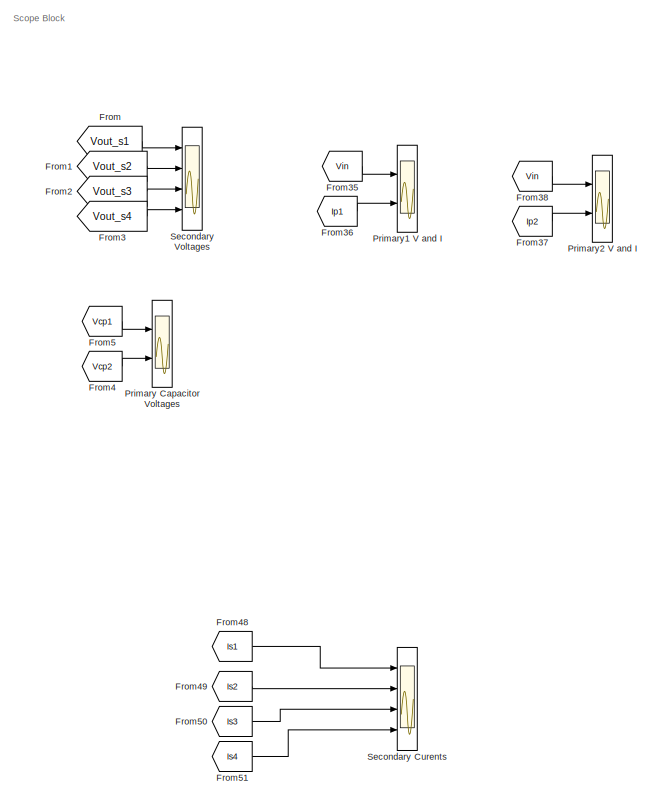
[diagram: root canvas - part 1/7, top right region]
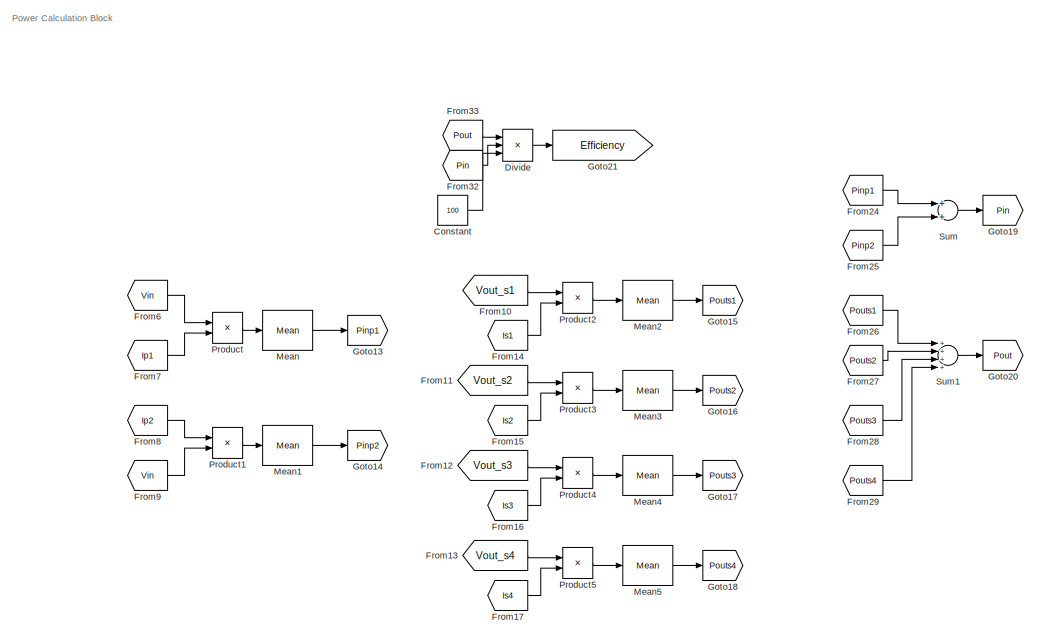
[diagram: root canvas - part 2/7, top left region]
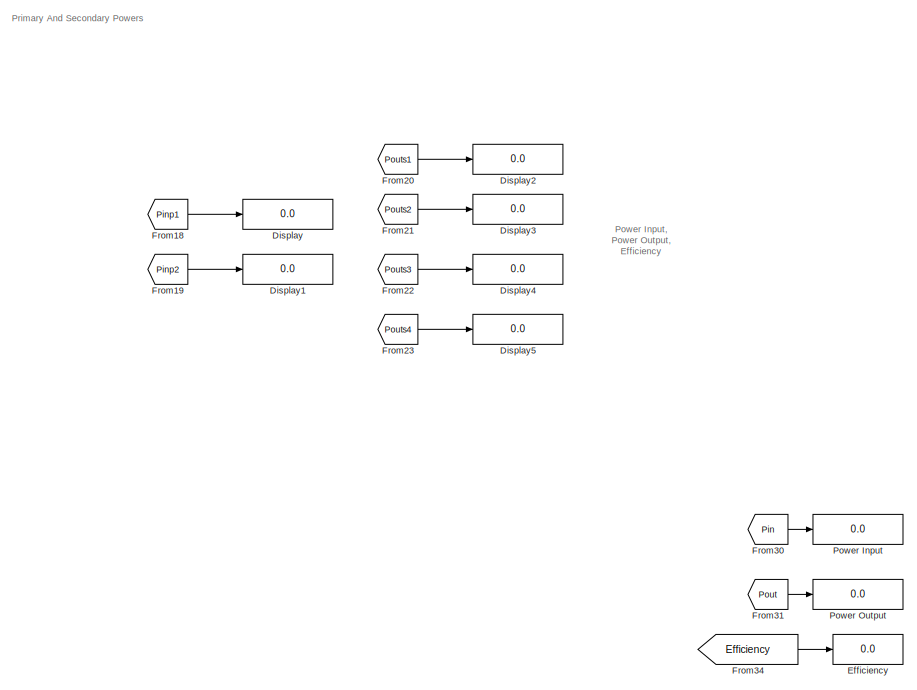
[diagram: root canvas - part 3/7, top center region]
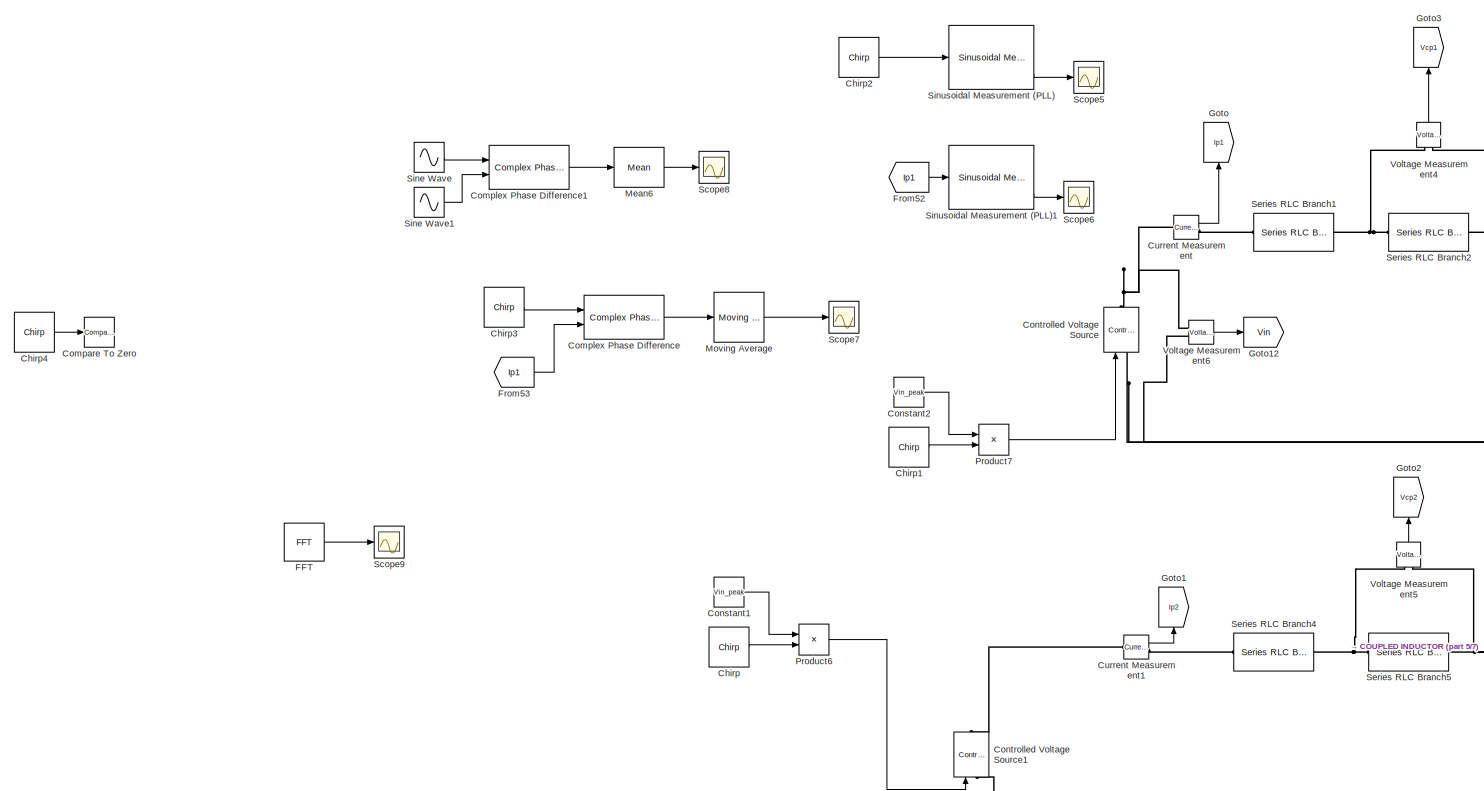
[diagram: root canvas - part 4/7, bottom left region]
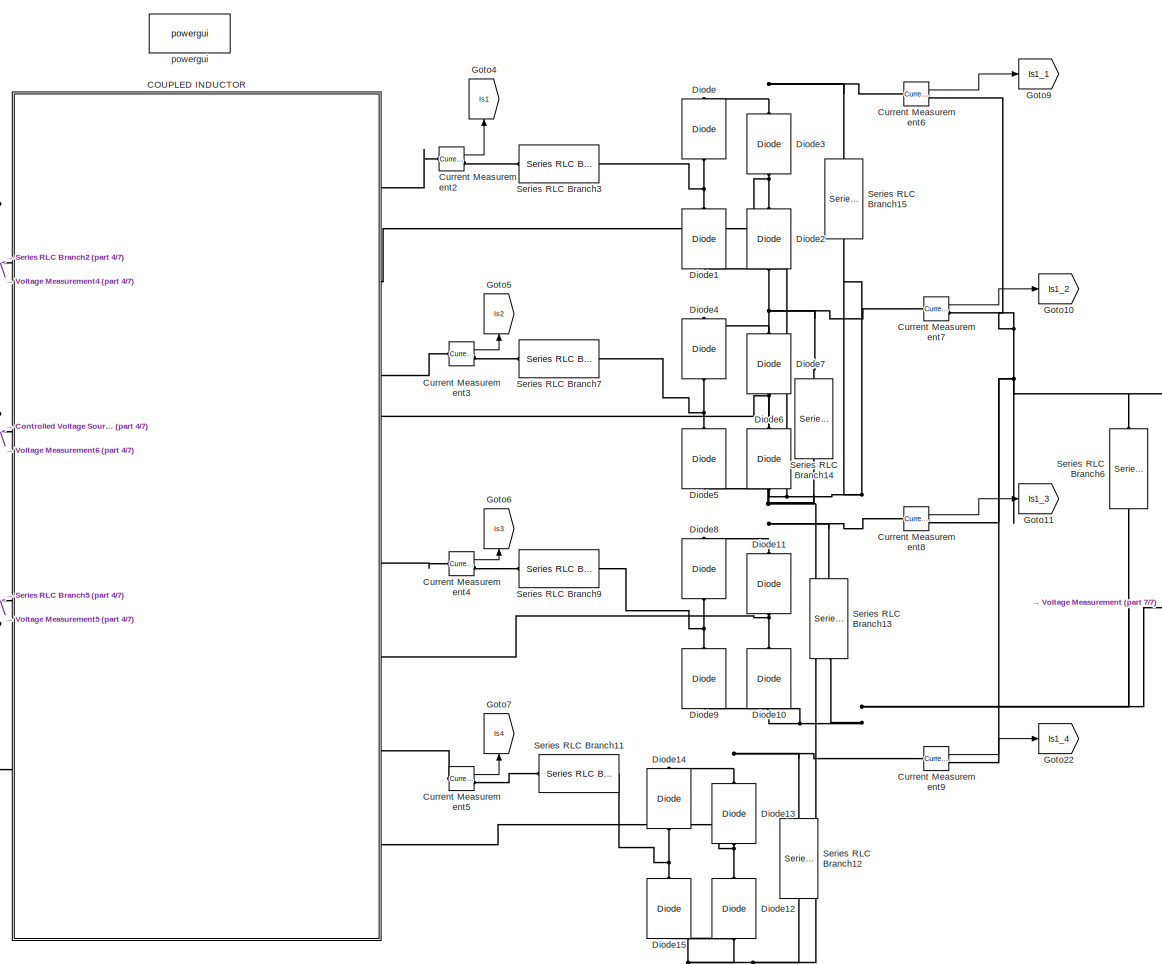
[diagram: root canvas - part 5/7, bottom center region]
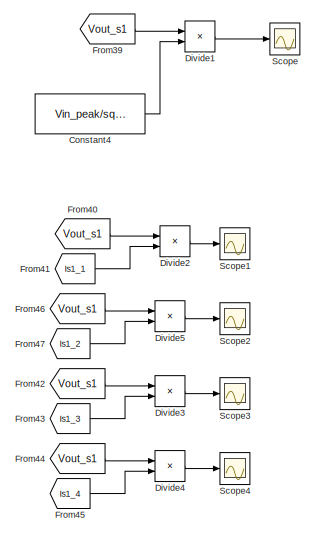
[diagram: root canvas - part 6/7, bottom right region]
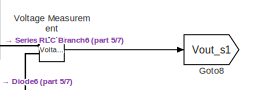
[diagram: root canvas - part 7/7, bottom right region]
MODEL slx_f496c27c3689
KIND model
CONFIG AbsTol = auto
CONFIG EnableMultiTasking = off
CONFIG FixedStep = auto
CONFIG MaxStep = 1e-5
CONFIG MinStep = auto
CONFIG RelTol = 1e-3
CONFIG SampleTimeConstraint = Unconstrained
CONFIG Solver = VariableStepAuto
CONFIG SolverName = VariableStepAuto
CONFIG StartTime = 0.0
CONFIG StopTime = 0.05
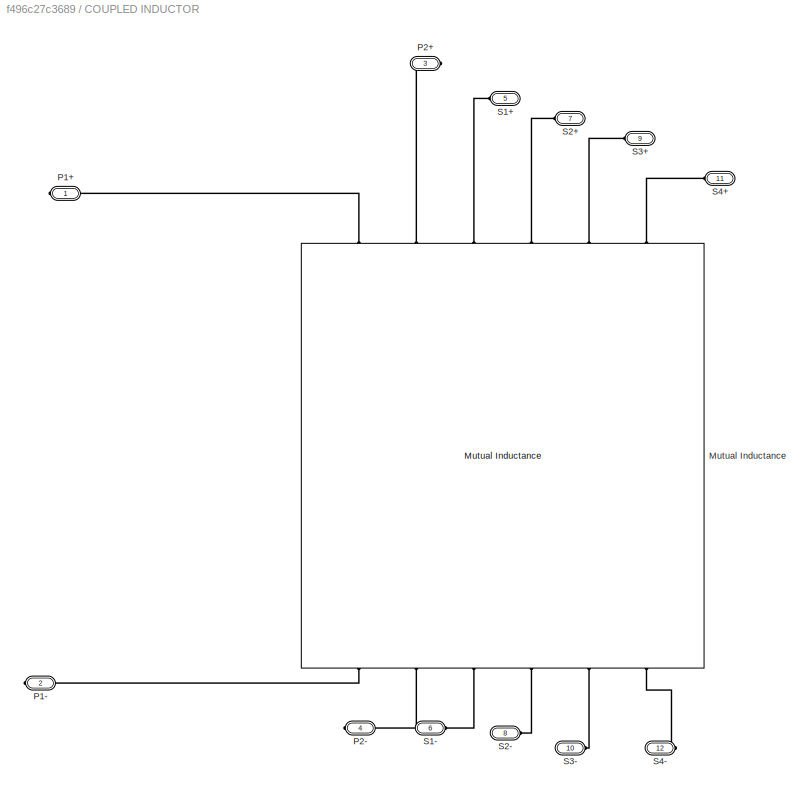
BLOCK [SubSystem] COUPLED INDUCTOR
  Ports = [0, 0, 0, 0, 0, 8, 4]
  RequestExecContextInheritance = off
BLOCK [Reference] COUPLED INDUCTOR/Mutual Inductance  REF=powerlib/Elements/Mutual Inductance
  AttributesFormatString = \n
  Ports = [0, 0, 0, 0, 0, 6, 6]
  SourceBlock = powerlib/Elements/Mutual Inductance
  SourceProductBaseCode = PS
  SourceProductName = Simscape Power Systems
  SourceType = Mutual Inductance
BLOCK [PMIOPort] COUPLED INDUCTOR/P1+
  Side = Right
BLOCK [PMIOPort] COUPLED INDUCTOR/P1-
  Port = 2
  Side = Right
BLOCK [PMIOPort] COUPLED INDUCTOR/P2+
  Port = 3
  Side = Right
BLOCK [PMIOPort] COUPLED INDUCTOR/P2-
  Port = 4
  Side = Right
BLOCK [PMIOPort] COUPLED INDUCTOR/S1+
  Port = 5
  Side = Left
BLOCK [PMIOPort] COUPLED INDUCTOR/S1-
  Port = 6
  Side = Left
BLOCK [PMIOPort] COUPLED INDUCTOR/S2+
  Port = 7
  Side = Left
BLOCK [PMIOPort] COUPLED INDUCTOR/S2-
  Port = 8
  Side = Left
BLOCK [PMIOPort] COUPLED INDUCTOR/S3+
  Port = 9
  Side = Left
BLOCK [PMIOPort] COUPLED INDUCTOR/S3-
  Port = 10
  Side = Left
BLOCK [PMIOPort] COUPLED INDUCTOR/S4+
  Port = 11
  Side = Left
BLOCK [PMIOPort] COUPLED INDUCTOR/S4-
  Port = 12
  Side = Left
BLOCK [Reference] Chirp  REF=dspsrcs4/Chirp
  Ports = [0, 1]
  SourceBlock = dspsrcs4/Chirp
  SourceProductBaseCode = DS
  SourceProductName = DSP System Toolbox
  SourceType = Chirp
BLOCK [Reference] Chirp1  REF=dspsrcs4/Chirp
  Ports = [0, 1]
  SourceBlock = dspsrcs4/Chirp
  SourceProductBaseCode = DS
  SourceProductName = DSP System Toolbox
  SourceType = Chirp
BLOCK [Reference] Chirp2  REF=dspsrcs4/Chirp
  Ports = [0, 1]
  SourceBlock = dspsrcs4/Chirp
  SourceProductBaseCode = DS
  SourceProductName = DSP System Toolbox
  SourceType = Chirp
BLOCK [Reference] Chirp3  REF=dspsrcs4/Chirp
  Ports = [0, 1]
  SourceBlock = dspsrcs4/Chirp
  SourceProductBaseCode = DS
  SourceProductName = DSP System Toolbox
  SourceType = Chirp
BLOCK [Reference] Chirp4  REF=dspsrcs4/Chirp
  Ports = [0, 1]
  SourceBlock = dspsrcs4/Chirp
  SourceProductBaseCode = DS
  SourceProductName = DSP System Toolbox
  SourceType = Chirp
BLOCK [Reference] Compare To Zero  REF=simulink/Logic and Bit
Operations/Compare
To Zero
  Ports = [1, 1]
  SourceBlock = simulink/Logic and Bit\nOperations/Compare\nTo Zero
  SourceProductBaseCode = SL
  SourceProductName = Simulink
  SourceType = Compare To Zero
BLOCK [Reference] Complex Phase Difference  REF=commutil2/Complex Phase
Difference
  Ports = [2, 1]
  SourceBlock = commutil2/Complex Phase\nDifference
  SourceProductBaseCode = CM
  SourceProductName = Communications System Toolbox
  SourceType = Complex Phase Difference
BLOCK [Reference] Complex Phase Difference1  REF=commutil2/Complex Phase
Difference
  Ports = [2, 1]
  SourceBlock = commutil2/Complex Phase\nDifference
  SourceProductBaseCode = CM
  SourceProductName = Communications System Toolbox
  SourceType = Complex Phase Difference
BLOCK [Constant] Constant
  Value = 100
BLOCK [Constant] Constant1
  Value = Vin_peak
BLOCK [Constant] Constant2
  Value = Vin_peak
BLOCK [Constant] Constant4
  Value = Vin_peak/sqrt(2)
BLOCK [Reference] Controlled Voltage Source  REF=powerlib/Electrical
Sources/Controlled Voltage Source
  Ports = [1, 0, 0, 0, 0, 1, 1]
  SourceBlock = powerlib/Electrical\nSources/Controlled Voltage Source
  SourceProductBaseCode = PS
  SourceProductName = Simscape Power Systems
  SourceType = Controlled Voltage Source
BLOCK [Reference] Controlled Voltage Source1  REF=powerlib/Electrical
Sources/Controlled Voltage Source
  Ports = [1, 0, 0, 0, 0, 1, 1]
  SourceBlock = powerlib/Electrical\nSources/Controlled Voltage Source
  SourceProductBaseCode = PS
  SourceProductName = Simscape Power Systems
  SourceType = Controlled Voltage Source
BLOCK [Reference] Current Measurement  REF=powerlib/Measurements/Current Measurement
  Ports = [0, 1, 0, 0, 0, 1, 1]
  SourceBlock = powerlib/Measurements/Current Measurement
  SourceProductBaseCode = PS
  SourceProductName = Simscape Power Systems
  SourceType = Current Measurement
  UserDataPersistent = on
BLOCK [Reference] Current Measurement1  REF=powerlib/Measurements/Current Measurement
  Ports = [0, 1, 0, 0, 0, 1, 1]
  SourceBlock = powerlib/Measurements/Current Measurement
  SourceProductBaseCode = PS
  SourceProductName = Simscape Power Systems
  SourceType = Current Measurement
  UserDataPersistent = on
BLOCK [Reference] Current Measurement2  REF=powerlib/Measurements/Current Measurement
  Ports = [0, 1, 0, 0, 0, 1, 1]
  SourceBlock = powerlib/Measurements/Current Measurement
  SourceProductBaseCode = PS
  SourceProductName = Simscape Power Systems
  SourceType = Current Measurement
  UserDataPersistent = on
BLOCK [Reference] Current Measurement3  REF=powerlib/Measurements/Current Measurement
  Ports = [0, 1, 0, 0, 0, 1, 1]
  SourceBlock = powerlib/Measurements/Current Measurement
  SourceProductBaseCode = PS
  SourceProductName = Simscape Power Systems
  SourceType = Current Measurement
  UserDataPersistent = on
BLOCK [Reference] Current Measurement4  REF=powerlib/Measurements/Current Measurement
  Ports = [0, 1, 0, 0, 0, 1, 1]
  SourceBlock = powerlib/Measurements/Current Measurement
  SourceProductBaseCode = PS
  SourceProductName = Simscape Power Systems
  SourceType = Current Measurement
  UserDataPersistent = on
BLOCK [Reference] Current Measurement5  REF=powerlib/Measurements/Current Measurement
  Ports = [0, 1, 0, 0, 0, 1, 1]
  SourceBlock = powerlib/Measurements/Current Measurement
  SourceProductBaseCode = PS
  SourceProductName = Simscape Power Systems
  SourceType = Current Measurement
  UserDataPersistent = on
BLOCK [Reference] Current Measurement6  REF=powerlib/Measurements/Current Measurement
  Ports = [0, 1, 0, 0, 0, 1, 1]
  SourceBlock = powerlib/Measurements/Current Measurement
  SourceProductBaseCode = PS
  SourceProductName = Simscape Power Systems
  SourceType = Current Measurement
  UserDataPersistent = on
BLOCK [Reference] Current Measurement7  REF=powerlib/Measurements/Current Measurement
  Ports = [0, 1, 0, 0, 0, 1, 1]
  SourceBlock = powerlib/Measurements/Current Measurement
  SourceProductBaseCode = PS
  SourceProductName = Simscape Power Systems
  SourceType = Current Measurement
  UserDataPersistent = on
BLOCK [Reference] Current Measurement8  REF=powerlib/Measurements/Current Measurement
  Ports = [0, 1, 0, 0, 0, 1, 1]
  SourceBlock = powerlib/Measurements/Current Measurement
  SourceProductBaseCode = PS
  SourceProductName = Simscape Power Systems
  SourceType = Current Measurement
  UserDataPersistent = on
BLOCK [Reference] Current Measurement9  REF=powerlib/Measurements/Current Measurement
  Ports = [0, 1, 0, 0, 0, 1, 1]
  SourceBlock = powerlib/Measurements/Current Measurement
  SourceProductBaseCode = PS
  SourceProductName = Simscape Power Systems
  SourceType = Current Measurement
  UserDataPersistent = on
BLOCK [Reference] Diode  REF=powerlib/Power
Electronics/Diode
  Ports = [0, 0, 0, 0, 0, 1, 1]
  SourceBlock = powerlib/Power\nElectronics/Diode
  SourceProductBaseCode = PS
  SourceProductName = Simscape Power Systems
  SourceType = Diode
BLOCK [Reference] Diode1  REF=powerlib/Power
Electronics/Diode
  Ports = [0, 0, 0, 0, 0, 1, 1]
  SourceBlock = powerlib/Power\nElectronics/Diode
  SourceProductBaseCode = PS
  SourceProductName = Simscape Power Systems
  SourceType = Diode
BLOCK [Reference] Diode10  REF=powerlib/Power
Electronics/Diode
  Ports = [0, 0, 0, 0, 0, 1, 1]
  SourceBlock = powerlib/Power\nElectronics/Diode
  SourceProductBaseCode = PS
  SourceProductName = Simscape Power Systems
  SourceType = Diode
BLOCK [Reference] Diode11  REF=powerlib/Power
Electronics/Diode
  Ports = [0, 0, 0, 0, 0, 1, 1]
  SourceBlock = powerlib/Power\nElectronics/Diode
  SourceProductBaseCode = PS
  SourceProductName = Simscape Power Systems
  SourceType = Diode
BLOCK [Reference] Diode12  REF=powerlib/Power
Electronics/Diode
  Ports = [0, 0, 0, 0, 0, 1, 1]
  SourceBlock = powerlib/Power\nElectronics/Diode
  SourceProductBaseCode = PS
  SourceProductName = Simscape Power Systems
  SourceType = Diode
BLOCK [Reference] Diode13  REF=powerlib/Power
Electronics/Diode
  Ports = [0, 0, 0, 0, 0, 1, 1]
  SourceBlock = powerlib/Power\nElectronics/Diode
  SourceProductBaseCode = PS
  SourceProductName = Simscape Power Systems
  SourceType = Diode
BLOCK [Reference] Diode14  REF=powerlib/Power
Electronics/Diode
  Ports = [0, 0, 0, 0, 0, 1, 1]
  SourceBlock = powerlib/Power\nElectronics/Diode
  SourceProductBaseCode = PS
  SourceProductName = Simscape Power Systems
  SourceType = Diode
BLOCK [Reference] Diode15  REF=powerlib/Power
Electronics/Diode
  Ports = [0, 0, 0, 0, 0, 1, 1]
  SourceBlock = powerlib/Power\nElectronics/Diode
  SourceProductBaseCode = PS
  SourceProductName = Simscape Power Systems
  SourceType = Diode
BLOCK [Reference] Diode2  REF=powerlib/Power
Electronics/Diode
  Ports = [0, 0, 0, 0, 0, 1, 1]
  SourceBlock = powerlib/Power\nElectronics/Diode
  SourceProductBaseCode = PS
  SourceProductName = Simscape Power Systems
  SourceType = Diode
BLOCK [Reference] Diode3  REF=powerlib/Power
Electronics/Diode
  Ports = [0, 0, 0, 0, 0, 1, 1]
  SourceBlock = powerlib/Power\nElectronics/Diode
  SourceProductBaseCode = PS
  SourceProductName = Simscape Power Systems
  SourceType = Diode
BLOCK [Reference] Diode4  REF=powerlib/Power
Electronics/Diode
  Ports = [0, 0, 0, 0, 0, 1, 1]
  SourceBlock = powerlib/Power\nElectronics/Diode
  SourceProductBaseCode = PS
  SourceProductName = Simscape Power Systems
  SourceType = Diode
BLOCK [Reference] Diode5  REF=powerlib/Power
Electronics/Diode
  Ports = [0, 0, 0, 0, 0, 1, 1]
  SourceBlock = powerlib/Power\nElectronics/Diode
  SourceProductBaseCode = PS
  SourceProductName = Simscape Power Systems
  SourceType = Diode
BLOCK [Reference] Diode6  REF=powerlib/Power
Electronics/Diode
  Ports = [0, 0, 0, 0, 0, 1, 1]
  SourceBlock = powerlib/Power\nElectronics/Diode
  SourceProductBaseCode = PS
  SourceProductName = Simscape Power Systems
  SourceType = Diode
BLOCK [Reference] Diode7  REF=powerlib/Power
Electronics/Diode
  Ports = [0, 0, 0, 0, 0, 1, 1]
  SourceBlock = powerlib/Power\nElectronics/Diode
  SourceProductBaseCode = PS
  SourceProductName = Simscape Power Systems
  SourceType = Diode
BLOCK [Reference] Diode8  REF=powerlib/Power
Electronics/Diode
  Ports = [0, 0, 0, 0, 0, 1, 1]
  SourceBlock = powerlib/Power\nElectronics/Diode
  SourceProductBaseCode = PS
  SourceProductName = Simscape Power Systems
  SourceType = Diode
BLOCK [Reference] Diode9  REF=powerlib/Power
Electronics/Diode
  Ports = [0, 0, 0, 0, 0, 1, 1]
  SourceBlock = powerlib/Power\nElectronics/Diode
  SourceProductBaseCode = PS
  SourceProductName = Simscape Power Systems
  SourceType = Diode
BLOCK [Display] Display
  Decimation = 1
  Ports = [1]
BLOCK [Display] Display1
  Decimation = 1
  Ports = [1]
BLOCK [Display] Display2
  Decimation = 1
  Ports = [1]
BLOCK [Display] Display3
  Decimation = 1
  Ports = [1]
BLOCK [Display] Display4
  Decimation = 1
  Ports = [1]
BLOCK [Display] Display5
  Decimation = 1
  Ports = [1]
BLOCK [Product] Divide
  InputSameDT = off
  Inputs = */*
  OutDataTypeStr = Inherit: Inherit via internal rule
  Ports = [3, 1]
  RndMeth = Floor
  SaturateOnIntegerOverflow = off
BLOCK [Product] Divide1
  InputSameDT = off
  Inputs = */
  OutDataTypeStr = Inherit: Inherit via internal rule
  Ports = [2, 1]
  RndMeth = Floor
  SaturateOnIntegerOverflow = off
BLOCK [Product] Divide2
  InputSameDT = off
  Inputs = */
  OutDataTypeStr = Inherit: Inherit via internal rule
  Ports = [2, 1]
  RndMeth = Floor
  SaturateOnIntegerOverflow = off
BLOCK [Product] Divide3
  InputSameDT = off
  Inputs = */
  OutDataTypeStr = Inherit: Inherit via internal rule
  Ports = [2, 1]
  RndMeth = Floor
  SaturateOnIntegerOverflow = off
BLOCK [Product] Divide4
  InputSameDT = off
  Inputs = */
  OutDataTypeStr = Inherit: Inherit via internal rule
  Ports = [2, 1]
  RndMeth = Floor
  SaturateOnIntegerOverflow = off
BLOCK [Product] Divide5
  InputSameDT = off
  Inputs = */
  OutDataTypeStr = Inherit: Inherit via internal rule
  Ports = [2, 1]
  RndMeth = Floor
  SaturateOnIntegerOverflow = off
BLOCK [Display] Efficiency
  Decimation = 1
  Ports = [1]
BLOCK [Reference] FFT  REF=dspxfrm3/FFT
  Ports = [1, 1]
  SourceBlock = dspxfrm3/FFT
  SourceProductBaseCode = DS
  SourceProductName = DSP System Toolbox
  SourceType = FFT
BLOCK [From] From
  GotoTag = Vout_s1
BLOCK [From] From1
  GotoTag = Vout_s2
BLOCK [From] From10
  GotoTag = Vout_s1
BLOCK [From] From11
  GotoTag = Vout_s2
BLOCK [From] From12
  GotoTag = Vout_s3
BLOCK [From] From13
  GotoTag = Vout_s4
BLOCK [From] From14
  GotoTag = Is1
BLOCK [From] From15
  GotoTag = Is2
BLOCK [From] From16
  GotoTag = Is3
BLOCK [From] From17
  GotoTag = Is4
BLOCK [From] From18
  GotoTag = Pinp1
BLOCK [From] From19
  GotoTag = Pinp2
BLOCK [From] From2
  GotoTag = Vout_s3
BLOCK [From] From20
  GotoTag = Pouts1
BLOCK [From] From21
  GotoTag = Pouts2
BLOCK [From] From22
  GotoTag = Pouts3
BLOCK [From] From23
  GotoTag = Pouts4
BLOCK [From] From24
  GotoTag = Pinp1
BLOCK [From] From25
  GotoTag = Pinp2
BLOCK [From] From26
  GotoTag = Pouts1
BLOCK [From] From27
  GotoTag = Pouts2
BLOCK [From] From28
  GotoTag = Pouts3
BLOCK [From] From29
  GotoTag = Pouts4
BLOCK [From] From3
  GotoTag = Vout_s4
BLOCK [From] From30
  GotoTag = Pin
BLOCK [From] From31
  GotoTag = Pout
BLOCK [From] From32
  GotoTag = Pin
BLOCK [From] From33
  GotoTag = Pout
BLOCK [From] From34
  GotoTag = Efficiency
BLOCK [From] From35
  GotoTag = Vin
BLOCK [From] From36
  GotoTag = Ip1
BLOCK [From] From37
  GotoTag = Ip2
BLOCK [From] From38
  GotoTag = Vin
BLOCK [From] From39
  GotoTag = Vout_s1
BLOCK [From] From4
  GotoTag = Vcp2
BLOCK [From] From40
  GotoTag = Vout_s1
BLOCK [From] From41
  GotoTag = Is1_1
BLOCK [From] From42
  GotoTag = Vout_s1
BLOCK [From] From43
  GotoTag = Is1_3
BLOCK [From] From44
  GotoTag = Vout_s1
BLOCK [From] From45
  GotoTag = Is1_4
BLOCK [From] From46
  GotoTag = Vout_s1
BLOCK [From] From47
  GotoTag = Is1_2
BLOCK [From] From48
  GotoTag = Is1
BLOCK [From] From49
  GotoTag = Is2
BLOCK [From] From5
  GotoTag = Vcp1
BLOCK [From] From50
  GotoTag = Is3
BLOCK [From] From51
  GotoTag = Is4
BLOCK [From] From52
  GotoTag = Ip1
BLOCK [From] From53
  GotoTag = Ip1
BLOCK [From] From6
  GotoTag = Vin
BLOCK [From] From7
  GotoTag = Ip1
BLOCK [From] From8
  GotoTag = Ip2
BLOCK [From] From9
  GotoTag = Vin
BLOCK [Goto] Goto
  GotoTag = Ip1
BLOCK [Goto] Goto1
  GotoTag = Ip2
BLOCK [Goto] Goto10
  GotoTag = Is1_2
BLOCK [Goto] Goto11
  GotoTag = Is1_3
BLOCK [Goto] Goto12
  GotoTag = Vin
BLOCK [Goto] Goto13
  GotoTag = Pinp1
BLOCK [Goto] Goto14
  GotoTag = Pinp2
BLOCK [Goto] Goto15
  GotoTag = Pouts1
BLOCK [Goto] Goto16
  GotoTag = Pouts2
BLOCK [Goto] Goto17
  GotoTag = Pouts3
BLOCK [Goto] Goto18
  GotoTag = Pouts4
BLOCK [Goto] Goto19
  GotoTag = Pin
BLOCK [Goto] Goto2
  GotoTag = Vcp2
BLOCK [Goto] Goto20
  GotoTag = Pout
BLOCK [Goto] Goto21
  GotoTag = Efficiency
BLOCK [Goto] Goto22
  GotoTag = Is1_4
BLOCK [Goto] Goto3
  GotoTag = Vcp1
BLOCK [Goto] Goto4
  GotoTag = Is1
BLOCK [Goto] Goto5
  GotoTag = Is2
BLOCK [Goto] Goto6
  GotoTag = Is3
BLOCK [Goto] Goto7
  GotoTag = Is4
BLOCK [Goto] Goto8
  GotoTag = Vout_s1
BLOCK [Goto] Goto9
  GotoTag = Is1_1
BLOCK [Reference] Mean  REF=powerlib_meascontrol/Measurements/Mean
  Ports = [1, 1]
  SourceBlock = powerlib_meascontrol/Measurements/Mean
  SourceProductBaseCode = PS
  SourceProductName = Simscape Power Systems
  SourceType = Mean
BLOCK [Reference] Mean1  REF=powerlib_meascontrol/Measurements/Mean
  Ports = [1, 1]
  SourceBlock = powerlib_meascontrol/Measurements/Mean
  SourceProductBaseCode = PS
  SourceProductName = Simscape Power Systems
  SourceType = Mean
BLOCK [Reference] Mean2  REF=powerlib_meascontrol/Measurements/Mean
  Ports = [1, 1]
  SourceBlock = powerlib_meascontrol/Measurements/Mean
  SourceProductBaseCode = PS
  SourceProductName = Simscape Power Systems
  SourceType = Mean
BLOCK [Reference] Mean3  REF=powerlib_meascontrol/Measurements/Mean
  Ports = [1, 1]
  SourceBlock = powerlib_meascontrol/Measurements/Mean
  SourceProductBaseCode = PS
  SourceProductName = Simscape Power Systems
  SourceType = Mean
BLOCK [Reference] Mean4  REF=powerlib_meascontrol/Measurements/Mean
  Ports = [1, 1]
  SourceBlock = powerlib_meascontrol/Measurements/Mean
  SourceProductBaseCode = PS
  SourceProductName = Simscape Power Systems
  SourceType = Mean
BLOCK [Reference] Mean5  REF=powerlib_meascontrol/Measurements/Mean
  Ports = [1, 1]
  SourceBlock = powerlib_meascontrol/Measurements/Mean
  SourceProductBaseCode = PS
  SourceProductName = Simscape Power Systems
  SourceType = Mean
BLOCK [Reference] Mean6  REF=powerlib_meascontrol/Measurements/Mean
  Ports = [1, 1]
  SourceBlock = powerlib_meascontrol/Measurements/Mean
  SourceProductBaseCode = PS
  SourceProductName = Simscape Power Systems
  SourceType = Mean
BLOCK [Reference] Moving Average  REF=dspstat3/Moving
Average
  Ports = [1, 1]
  SourceBlock = dspstat3/Moving\nAverage
  SourceProductBaseCode = DS
  SourceProductName = DSP System Toolbox
  SourceType = dsp.simulink.MovingAverage
BLOCK [Display] Power Input
  Decimation = 1
  Ports = [1]
BLOCK [Display] Power Output
  Decimation = 1
  Ports = [1]
BLOCK [Scope] Primary Capacitor Voltages
  Floating = off
  NumInputPorts = 2
  Ports = [2]
  ScopeSpecificationString = Simulink.scopes.TimeScopeBlockCfg('CurrentConfiguration', extmgr.ConfigurationSet(extmgr.Configuration('Core','General UI',true,'FigureColor',[1 1 1]),extmgr.Configuration('Core','Source UI',true),extmgr.Configuration('Sources','WiredSimulink',true,'DataLoggingVariableName','ScopeData1'),extmgr.Configuration('Visuals','Time Domain',true,'SerializedDisplays',{struct('MinYLimReal','-851.30975','MaxY...<+1909ch>
BLOCK [Scope] Primary1 V and I
  Floating = off
  NumInputPorts = 2
  Ports = [2]
  ScopeSpecificationString = Simulink.scopes.TimeScopeBlockCfg('CurrentConfiguration', extmgr.ConfigurationSet(extmgr.Configuration('Core','General UI',true,'FigureColor',[1 1 1]),extmgr.Configuration('Core','Source UI',true),extmgr.Configuration('Sources','WiredSimulink',true,'DataLoggingVariableName','ScopeData2'),extmgr.Configuration('Visuals','Time Domain',true,'SerializedDisplays',{struct('MinYLimReal','-158.74999','MaxY...<+2194ch>
BLOCK [Scope] Primary2 V and I
  Floating = off
  NumInputPorts = 2
  Ports = [2]
  ScopeSpecificationString = Simulink.scopes.TimeScopeBlockCfg('CurrentConfiguration', extmgr.ConfigurationSet(extmgr.Configuration('Core','General UI',true,'FigureColor',[1 1 1]),extmgr.Configuration('Core','Source UI',true),extmgr.Configuration('Sources','WiredSimulink',true,'DataLoggingVariableName','ScopeData3'),extmgr.Configuration('Visuals','Time Domain',true,'SerializedDisplays',{struct('MinYLimReal','-514.25571','MaxY...<+1938ch>
BLOCK [Product] Product
  InputSameDT = off
  OutDataTypeStr = Inherit: Inherit via internal rule
  Ports = [2, 1]
  RndMeth = Floor
  SaturateOnIntegerOverflow = off
BLOCK [Product] Product1
  InputSameDT = off
  OutDataTypeStr = Inherit: Inherit via internal rule
  Ports = [2, 1]
  RndMeth = Floor
  SaturateOnIntegerOverflow = off
BLOCK [Product] Product2
  InputSameDT = off
  OutDataTypeStr = Inherit: Inherit via internal rule
  Ports = [2, 1]
  RndMeth = Floor
  SaturateOnIntegerOverflow = off
BLOCK [Product] Product3
  InputSameDT = off
  OutDataTypeStr = Inherit: Inherit via internal rule
  Ports = [2, 1]
  RndMeth = Floor
  SaturateOnIntegerOverflow = off
BLOCK [Product] Product4
  InputSameDT = off
  OutDataTypeStr = Inherit: Inherit via internal rule
  Ports = [2, 1]
  RndMeth = Floor
  SaturateOnIntegerOverflow = off
BLOCK [Product] Product5
  InputSameDT = off
  OutDataTypeStr = Inherit: Inherit via internal rule
  Ports = [2, 1]
  RndMeth = Floor
  SaturateOnIntegerOverflow = off
BLOCK [Product] Product6
  InputSameDT = off
  OutDataTypeStr = Inherit: Inherit via internal rule
  Ports = [2, 1]
  RndMeth = Floor
  SaturateOnIntegerOverflow = off
BLOCK [Product] Product7
  InputSameDT = off
  OutDataTypeStr = Inherit: Inherit via internal rule
  Ports = [2, 1]
  RndMeth = Floor
  SaturateOnIntegerOverflow = off
BLOCK [Scope] Scope
  Floating = off
  NumInputPorts = 1
  Ports = [1]
  ScopeSpecificationString = Simulink.scopes.TimeScopeBlockCfg('CurrentConfiguration', extmgr.ConfigurationSet(extmgr.Configuration('Core','General UI',true,'FigureColor',[0.972549019607843 0.972549019607843 0.972549019607843]),extmgr.Configuration('Core','Source UI',true),extmgr.Configuration('Sources','WiredSimulink',true,'DataLoggingVariableName','ScopeData1'),extmgr.Configuration('Visuals','Time Domain',true,'SerializedDi...<+1633ch>
BLOCK [Scope] Scope1
  Floating = off
  NumInputPorts = 1
  Ports = [1]
  ScopeSpecificationString = Simulink.scopes.TimeScopeBlockCfg('CurrentConfiguration', extmgr.ConfigurationSet(extmgr.Configuration('Core','General UI',true),extmgr.Configuration('Core','Source UI',true),extmgr.Configuration('Sources','WiredSimulink',true,'DataLoggingVariableName','ScopeData2'),extmgr.Configuration('Visuals','Time Domain',true,'SerializedDisplays',{struct('MinYLimReal','-6.57412','MaxYLimReal','59.1671','YLab...<+1716ch>
BLOCK [Scope] Scope2
  Floating = off
  NumInputPorts = 1
  Ports = [1]
  ScopeSpecificationString = Simulink.scopes.TimeScopeBlockCfg('CurrentConfiguration', extmgr.ConfigurationSet(extmgr.Configuration('Core','General UI',true),extmgr.Configuration('Core','Source UI',true),extmgr.Configuration('Sources','WiredSimulink',true,'DataLoggingVariableName','ScopeData3'),extmgr.Configuration('Visuals','Time Domain',true,'SerializedDisplays',{struct('MinYLimReal','-19066297.66075','MaxYLimReal','5407067...<+1767ch>
BLOCK [Scope] Scope3
  Floating = off
  NumInputPorts = 1
  Ports = [1]
  ScopeSpecificationString = Simulink.scopes.TimeScopeBlockCfg('CurrentConfiguration', extmgr.ConfigurationSet(extmgr.Configuration('Core','General UI',true),extmgr.Configuration('Core','Source UI',true),extmgr.Configuration('Sources','WiredSimulink',true,'DataLoggingVariableName','ScopeData4'),extmgr.Configuration('Visuals','Time Domain',true,'SerializedDisplays',{struct('MinYLimReal','-642.83591','MaxYLimReal','503.56144','...<+1730ch>
BLOCK [Scope] Scope4
  Floating = off
  NumInputPorts = 1
  Ports = [1]
  ScopeSpecificationString = Simulink.scopes.TimeScopeBlockCfg('CurrentConfiguration', extmgr.ConfigurationSet(extmgr.Configuration('Core','General UI',true),extmgr.Configuration('Core','Source UI',true),extmgr.Configuration('Sources','WiredSimulink',true,'DataLoggingVariableName','ScopeData5'),extmgr.Configuration('Visuals','Time Domain',true,'SerializedDisplays',{struct('MinYLimReal','-6.56283','MaxYLimReal','59.06548','YLa...<+1720ch>
BLOCK [Scope] Scope5
  Floating = off
  NumInputPorts = 1
  Ports = [1]
  ScopeSpecificationString = Simulink.scopes.TimeScopeBlockCfg('CurrentConfiguration', extmgr.ConfigurationSet(extmgr.Configuration('Core','General UI',true),extmgr.Configuration('Core','Source UI',true),extmgr.Configuration('Sources','WiredSimulink',true,'DataLoggingVariableName','ScopeData7'),extmgr.Configuration('Visuals','Time Domain',true,'SerializedDisplays',{struct('MinYLimReal','-0.12622','MaxYLimReal','1.12516','YLab...<+1389ch>
BLOCK [Scope] Scope6
  Floating = off
  NumInputPorts = 1
  Ports = [1]
  ScopeSpecificationString = Simulink.scopes.TimeScopeBlockCfg('CurrentConfiguration', extmgr.ConfigurationSet(extmgr.Configuration('Core','General UI',true),extmgr.Configuration('Core','Source UI',true),extmgr.Configuration('Sources','WiredSimulink',true,'DataLoggingVariableName','ScopeData8'),extmgr.Configuration('Visuals','Time Domain',true,'SerializedDisplays',{struct('MinYLimReal','-0.13714','MaxYLimReal','1.12642','YLab...<+1390ch>
BLOCK [Scope] Scope7
  Floating = off
  NumInputPorts = 1
  Ports = [1]
  ScopeSpecificationString = Simulink.scopes.TimeScopeBlockCfg('CurrentConfiguration', extmgr.ConfigurationSet(extmgr.Configuration('Core','General UI',true),extmgr.Configuration('Core','Source UI',true),extmgr.Configuration('Sources','WiredSimulink',true,'DataLoggingVariableName','ScopeData9'),extmgr.Configuration('Visuals','Time Domain',true,'SerializedDisplays',{struct('MinYLimReal','-0.3927','MaxYLimReal','3.53429','YLabe...<+1442ch>
BLOCK [Scope] Scope8
  Floating = off
  NumInputPorts = 1
  Ports = [1]
  ScopeSpecificationString = Simulink.scopes.TimeScopeBlockCfg('CurrentConfiguration', extmgr.ConfigurationSet(extmgr.Configuration('Core','General UI',true),extmgr.Configuration('Core','Source UI',true),extmgr.Configuration('Sources','WiredSimulink',true,'DataLoggingVariableName','ScopeData10'),extmgr.Configuration('Visuals','Time Domain',true,'SerializedDisplays',{struct('MinYLimReal','-0.3927','MaxYLimReal','3.53429','YLab...<+1434ch>
BLOCK [Scope] Scope9
  Floating = off
  NumInputPorts = 1
  Ports = [1]
  ScopeSpecificationString = Simulink.scopes.TimeScopeBlockCfg('CurrentConfiguration', extmgr.ConfigurationSet(extmgr.Configuration('Core','General UI',true),extmgr.Configuration('Core','Source UI',true),extmgr.Configuration('Sources','WiredSimulink',true,'DataLoggingVariableName','ScopeData11'),extmgr.Configuration('Visuals','Time Domain',true,'SerializedDisplays',{struct('MinYLimReal','-1.0326','MaxYLimReal','1.04729','YLab...<+1454ch>
BLOCK [Scope] Secondary Curents
  Floating = off
  NumInputPorts = 4
  Ports = [4]
  ScopeSpecificationString = Simulink.scopes.TimeScopeBlockCfg('CurrentConfiguration', extmgr.ConfigurationSet(extmgr.Configuration('Core','General UI',true,'FigureColor',[1 1 1]),extmgr.Configuration('Core','Source UI',true),extmgr.Configuration('Sources','WiredSimulink',true,'DataLoggingVariableName','ScopeData6'),extmgr.Configuration('Visuals','Time Domain',true,'SerializedDisplays',{struct('MinYLimReal','-5.22984','MaxYLi...<+1943ch>
BLOCK [Scope] Secondary Voltages
  Floating = off
  NumInputPorts = 4
  Ports = [4]
  ScopeSpecificationString = Simulink.scopes.TimeScopeBlockCfg('CurrentConfiguration', extmgr.ConfigurationSet(extmgr.Configuration('Core','General UI',true,'FigureColor',[1 1 1]),extmgr.Configuration('Core','Source UI',true),extmgr.Configuration('Sources','WiredSimulink',true),extmgr.Configuration('Visuals','Time Domain',true,'SerializedDisplays',{struct('MinYLimReal','-12.56707','MaxYLimReal','113.10359','YLabelReal','','Mi...<+1879ch>
BLOCK [Reference] Series RLC Branch1  REF=powerlib/Elements/Series RLC Branch
  Ports = [0, 0, 0, 0, 0, 1, 1]
  SourceBlock = powerlib/Elements/Series RLC Branch
  SourceProductBaseCode = PS
  SourceProductName = Simscape Power Systems
  SourceType = Series RLC Branch
BLOCK [Reference] Series RLC Branch11  REF=powerlib/Elements/Series RLC Branch
  Ports = [0, 0, 0, 0, 0, 1, 1]
  SourceBlock = powerlib/Elements/Series RLC Branch
  SourceProductBaseCode = PS
  SourceProductName = Simscape Power Systems
  SourceType = Series RLC Branch
BLOCK [Reference] Series RLC Branch12  REF=powerlib/Elements/Series RLC Branch
  Ports = [0, 0, 0, 0, 0, 1, 1]
  SourceBlock = powerlib/Elements/Series RLC Branch
  SourceProductBaseCode = PS
  SourceProductName = Simscape Power Systems
  SourceType = Series RLC Branch
BLOCK [Reference] Series RLC Branch13  REF=powerlib/Elements/Series RLC Branch
  Ports = [0, 0, 0, 0, 0, 1, 1]
  SourceBlock = powerlib/Elements/Series RLC Branch
  SourceProductBaseCode = PS
  SourceProductName = Simscape Power Systems
  SourceType = Series RLC Branch
BLOCK [Reference] Series RLC Branch14  REF=powerlib/Elements/Series RLC Branch
  Ports = [0, 0, 0, 0, 0, 1, 1]
  SourceBlock = powerlib/Elements/Series RLC Branch
  SourceProductBaseCode = PS
  SourceProductName = Simscape Power Systems
  SourceType = Series RLC Branch
BLOCK [Reference] Series RLC Branch15  REF=powerlib/Elements/Series RLC Branch
  Ports = [0, 0, 0, 0, 0, 1, 1]
  SourceBlock = powerlib/Elements/Series RLC Branch
  SourceProductBaseCode = PS
  SourceProductName = Simscape Power Systems
  SourceType = Series RLC Branch
BLOCK [Reference] Series RLC Branch2  REF=powerlib/Elements/Series RLC Branch
  Ports = [0, 0, 0, 0, 0, 1, 1]
  SourceBlock = powerlib/Elements/Series RLC Branch
  SourceProductBaseCode = PS
  SourceProductName = Simscape Power Systems
  SourceType = Series RLC Branch
BLOCK [Reference] Series RLC Branch3  REF=powerlib/Elements/Series RLC Branch
  Ports = [0, 0, 0, 0, 0, 1, 1]
  SourceBlock = powerlib/Elements/Series RLC Branch
  SourceProductBaseCode = PS
  SourceProductName = Simscape Power Systems
  SourceType = Series RLC Branch
BLOCK [Reference] Series RLC Branch4  REF=powerlib/Elements/Series RLC Branch
  Ports = [0, 0, 0, 0, 0, 1, 1]
  SourceBlock = powerlib/Elements/Series RLC Branch
  SourceProductBaseCode = PS
  SourceProductName = Simscape Power Systems
  SourceType = Series RLC Branch
BLOCK [Reference] Series RLC Branch5  REF=powerlib/Elements/Series RLC Branch
  Ports = [0, 0, 0, 0, 0, 1, 1]
  SourceBlock = powerlib/Elements/Series RLC Branch
  SourceProductBaseCode = PS
  SourceProductName = Simscape Power Systems
  SourceType = Series RLC Branch
BLOCK [Reference] Series RLC Branch6  REF=powerlib/Elements/Series RLC Branch
  Ports = [0, 0, 0, 0, 0, 1, 1]
  SourceBlock = powerlib/Elements/Series RLC Branch
  SourceProductBaseCode = PS
  SourceProductName = Simscape Power Systems
  SourceType = Series RLC Branch
BLOCK [Reference] Series RLC Branch7  REF=powerlib/Elements/Series RLC Branch
  Ports = [0, 0, 0, 0, 0, 1, 1]
  SourceBlock = powerlib/Elements/Series RLC Branch
  SourceProductBaseCode = PS
  SourceProductName = Simscape Power Systems
  SourceType = Series RLC Branch
BLOCK [Reference] Series RLC Branch9  REF=powerlib/Elements/Series RLC Branch
  Ports = [0, 0, 0, 0, 0, 1, 1]
  SourceBlock = powerlib/Elements/Series RLC Branch
  SourceProductBaseCode = PS
  SourceProductName = Simscape Power Systems
  SourceType = Series RLC Branch
BLOCK [Sin] Sine Wave
  Frequency = 2*pi*150000
  Ports = [0, 1]
  SampleTime = 0
BLOCK [Sin] Sine Wave1
  Frequency = 2*pi*150000
  Phase = 1
  Ports = [0, 1]
  SampleTime = 0
BLOCK [Reference] Sinusoidal Measurement (PLL)  REF=peSinusoidalMeasurement/Sinusoidal
Measurement (PLL)
  Ports = [1, 3]
  SourceBlock = peSinusoidalMeasurement/Sinusoidal\nMeasurement (PLL)
  SourceType = Sinusoidal Measurement (PLL)
BLOCK [Reference] Sinusoidal Measurement (PLL)1  REF=peSinusoidalMeasurement/Sinusoidal
Measurement (PLL)
  Ports = [1, 3]
  SourceBlock = peSinusoidalMeasurement/Sinusoidal\nMeasurement (PLL)
  SourceType = Sinusoidal Measurement (PLL)
BLOCK [Sum] Sum
  InputSameDT = off
  OutDataTypeStr = Inherit: Inherit via internal rule
  Ports = [2, 1]
  SaturateOnIntegerOverflow = off
BLOCK [Sum] Sum1
  InputSameDT = off
  Inputs = ++++
  OutDataTypeStr = Inherit: Inherit via internal rule
  Ports = [4, 1]
  SaturateOnIntegerOverflow = off
BLOCK [Reference] Voltage Measurement  REF=powerlib/Measurements/Voltage Measurement
  Ports = [0, 1, 0, 0, 0, 2]
  SourceBlock = powerlib/Measurements/Voltage Measurement
  SourceProductBaseCode = PS
  SourceProductName = Simscape Power Systems
  SourceType = Voltage Measurement
  UserDataPersistent = on
BLOCK [Reference] Voltage Measurement4  REF=powerlib/Measurements/Voltage Measurement
  Ports = [0, 1, 0, 0, 0, 2]
  SourceBlock = powerlib/Measurements/Voltage Measurement
  SourceProductBaseCode = PS
  SourceProductName = Simscape Power Systems
  SourceType = Voltage Measurement
  UserDataPersistent = on
BLOCK [Reference] Voltage Measurement5  REF=powerlib/Measurements/Voltage Measurement
  Ports = [0, 1, 0, 0, 0, 2]
  SourceBlock = powerlib/Measurements/Voltage Measurement
  SourceProductBaseCode = PS
  SourceProductName = Simscape Power Systems
  SourceType = Voltage Measurement
  UserDataPersistent = on
BLOCK [Reference] Voltage Measurement6  REF=powerlib/Measurements/Voltage Measurement
  Ports = [0, 1, 0, 0, 0, 2]
  SourceBlock = powerlib/Measurements/Voltage Measurement
  SourceProductBaseCode = PS
  SourceProductName = Simscape Power Systems
  SourceType = Voltage Measurement
  UserDataPersistent = on
BLOCK [Reference] powergui  REF=powerlib/powergui
  Ports = []
  Priority = 1
  SourceBlock = powerlib/powergui
  SourceProductBaseCode = PS
  SourceProductName = Simscape Power Systems
  SourceType = PSB option menu block
ANNOTATION (root): Power Calculation Block
ANNOTATION (root): Power Input, Power Output, Efficiency
ANNOTATION (root): Primary And Secondary Powers
ANNOTATION (root): Scope Block
LINE Chirp1:1 -> Product7:2
LINE Chirp2:1 -> Sinusoidal Measurement (PLL):1
LINE Chirp3:1 -> Complex Phase Difference:1
LINE Chirp4:1 -> Compare To Zero:1
LINE Chirp:1 -> Product6:2
LINE Complex Phase Difference1:1 -> Mean6:1
LINE Complex Phase Difference:1 -> Moving Average:1
LINE Constant1:1 -> Product6:1
LINE Constant2:1 -> Product7:1
LINE Constant4:1 -> Divide1:2
LINE Constant:1 -> Divide:3
LINE Current Measurement1:1 -> Goto1:1
LINE Current Measurement2:1 -> Goto4:1
LINE Current Measurement3:1 -> Goto5:1
LINE Current Measurement4:1 -> Goto6:1
LINE Current Measurement5:1 -> Goto7:1
LINE Current Measurement6:1 -> Goto9:1
LINE Current Measurement7:1 -> Goto10:1
LINE Current Measurement8:1 -> Goto11:1
LINE Current Measurement9:1 -> Goto22:1
LINE Current Measurement:1 -> Goto:1
LINE Divide1:1 -> Scope:1
LINE Divide2:1 -> Scope1:1
LINE Divide3:1 -> Scope3:1
LINE Divide4:1 -> Scope4:1
LINE Divide5:1 -> Scope2:1
LINE Divide:1 -> Goto21:1
LINE FFT:1 -> Scope9:1
LINE From10:1 -> Product2:1
LINE From11:1 -> Product3:1
LINE From12:1 -> Product4:1
LINE From13:1 -> Product5:1
LINE From14:1 -> Product2:2
LINE From15:1 -> Product3:2
LINE From16:1 -> Product4:2
LINE From17:1 -> Product5:2
LINE From18:1 -> Display:1
LINE From19:1 -> Display1:1
LINE From1:1 -> Secondary Voltages:2
LINE From20:1 -> Display2:1
LINE From21:1 -> Display3:1
LINE From22:1 -> Display4:1
LINE From23:1 -> Display5:1
LINE From24:1 -> Sum:1
LINE From25:1 -> Sum:2
LINE From26:1 -> Sum1:1
LINE From27:1 -> Sum1:2
LINE From28:1 -> Sum1:3
LINE From29:1 -> Sum1:4
LINE From2:1 -> Secondary Voltages:3
LINE From30:1 -> Power Input:1
LINE From31:1 -> Power Output:1
LINE From32:1 -> Divide:2
LINE From33:1 -> Divide:1
LINE From34:1 -> Efficiency:1
LINE From35:1 -> Primary1 V and I:1
LINE From36:1 -> Primary1 V and I:2
LINE From37:1 -> Primary2 V and I:2
LINE From38:1 -> Primary2 V and I:1
LINE From39:1 -> Divide1:1
LINE From3:1 -> Secondary Voltages:4
LINE From40:1 -> Divide2:1
LINE From41:1 -> Divide2:2
LINE From42:1 -> Divide3:1
LINE From43:1 -> Divide3:2
LINE From44:1 -> Divide4:1
LINE From45:1 -> Divide4:2
LINE From46:1 -> Divide5:1
LINE From47:1 -> Divide5:2
LINE From48:1 -> Secondary Curents:1
LINE From49:1 -> Secondary Curents:2
LINE From4:1 -> Primary Capacitor Voltages:2
LINE From50:1 -> Secondary Curents:3
LINE From51:1 -> Secondary Curents:4
LINE From52:1 -> Sinusoidal Measurement (PLL)1:1
LINE From53:1 -> Complex Phase Difference:2
LINE From5:1 -> Primary Capacitor Voltages:1
LINE From6:1 -> Product:1
LINE From7:1 -> Product:2
LINE From8:1 -> Product1:1
LINE From9:1 -> Product1:2
LINE From:1 -> Secondary Voltages:1
LINE Mean1:1 -> Goto14:1
LINE Mean2:1 -> Goto15:1
LINE Mean3:1 -> Goto16:1
LINE Mean4:1 -> Goto17:1
LINE Mean5:1 -> Goto18:1
LINE Mean6:1 -> Scope8:1
LINE Mean:1 -> Goto13:1
LINE Moving Average:1 -> Scope7:1
LINE Product1:1 -> Mean1:1
LINE Product2:1 -> Mean2:1
LINE Product3:1 -> Mean3:1
LINE Product4:1 -> Mean4:1
LINE Product5:1 -> Mean5:1
LINE Product6:1 -> Controlled Voltage Source1:1
LINE Product7:1 -> Controlled Voltage Source:1
LINE Product:1 -> Mean:1
LINE Sine Wave1:1 -> Complex Phase Difference1:2
LINE Sine Wave:1 -> Complex Phase Difference1:1
LINE Sinusoidal Measurement (PLL)1:3 -> Scope6:1
LINE Sinusoidal Measurement (PLL):3 -> Scope5:1
LINE Sum1:1 -> Goto20:1
LINE Sum:1 -> Goto19:1
LINE Voltage Measurement4:1 -> Goto3:1
LINE Voltage Measurement5:1 -> Goto2:1
LINE Voltage Measurement6:1 -> Goto12:1
LINE Voltage Measurement:1 -> Goto8:1
PLINE COUPLED INDUCTOR/Mutual Inductance:LConn1 -- COUPLED INDUCTOR/P1-:RConn1
PLINE COUPLED INDUCTOR/Mutual Inductance:LConn2 -- COUPLED INDUCTOR/P2-:RConn1
PLINE COUPLED INDUCTOR/Mutual Inductance:LConn3 -- COUPLED INDUCTOR/S1-:RConn1
PLINE COUPLED INDUCTOR/Mutual Inductance:LConn4 -- COUPLED INDUCTOR/S2-:RConn1
PLINE COUPLED INDUCTOR/Mutual Inductance:LConn5 -- COUPLED INDUCTOR/S3-:RConn1
PLINE COUPLED INDUCTOR/Mutual Inductance:LConn6 -- COUPLED INDUCTOR/S4-:RConn1
PLINE COUPLED INDUCTOR/Mutual Inductance:RConn1 -- COUPLED INDUCTOR/P1+:RConn1
PLINE COUPLED INDUCTOR/Mutual Inductance:RConn2 -- COUPLED INDUCTOR/P2+:RConn1
PLINE COUPLED INDUCTOR/Mutual Inductance:RConn3 -- COUPLED INDUCTOR/S1+:RConn1
PLINE COUPLED INDUCTOR/Mutual Inductance:RConn4 -- COUPLED INDUCTOR/S2+:RConn1
PLINE COUPLED INDUCTOR/Mutual Inductance:RConn5 -- COUPLED INDUCTOR/S3+:RConn1
PLINE COUPLED INDUCTOR/Mutual Inductance:RConn6 -- COUPLED INDUCTOR/S4+:RConn1
PLINE COUPLED INDUCTOR:LConn1 -- Current Measurement2:LConn1
PNET net1: COUPLED INDUCTOR:LConn2 -- Diode2:RConn1 -- Diode3:LConn1
PLINE COUPLED INDUCTOR:LConn3 -- Current Measurement3:LConn1
PNET net2: COUPLED INDUCTOR:LConn4 -- Diode6:RConn1 -- Diode7:LConn1
PLINE COUPLED INDUCTOR:LConn5 -- Current Measurement4:LConn1
PNET net3: COUPLED INDUCTOR:LConn6 -- Diode10:RConn1 -- Diode11:LConn1
PLINE COUPLED INDUCTOR:LConn7 -- Current Measurement5:LConn1
PNET net4: COUPLED INDUCTOR:LConn8 -- Diode12:RConn1 -- Diode13:LConn1
PNET net5: COUPLED INDUCTOR:RConn1 -- Series RLC Branch2:RConn1 -- Voltage Measurement4:LConn2
PNET net6: COUPLED INDUCTOR:RConn2 -- Controlled Voltage Source:LConn1 -- Voltage Measurement6:LConn2
PNET net7: COUPLED INDUCTOR:RConn3 -- Series RLC Branch5:RConn1 -- Voltage Measurement5:LConn2
PLINE COUPLED INDUCTOR:RConn4 -- Controlled Voltage Source1:LConn1
PLINE Controlled Voltage Source1:RConn1 -- Current Measurement1:LConn1
PNET net8: Controlled Voltage Source:RConn1 -- Current Measurement:LConn1 -- Voltage Measurement6:LConn1
PLINE Current Measurement1:RConn1 -- Series RLC Branch4:RConn1
PLINE Current Measurement2:RConn1 -- Series RLC Branch3:LConn1
PLINE Current Measurement3:RConn1 -- Series RLC Branch7:LConn1
PLINE Current Measurement4:RConn1 -- Series RLC Branch9:LConn1
PLINE Current Measurement5:RConn1 -- Series RLC Branch11:LConn1
PNET net9: Current Measurement6:LConn1 -- Diode3:RConn1 -- Diode:RConn1 -- Series RLC Branch15:LConn1
PNET net10: Current Measurement6:RConn1 -- Current Measurement7:RConn1 -- Current Measurement8:RConn1 -- Current Measurement9:RConn1 -- Series RLC Branch6:LConn1 -- Voltage Measurement:LConn1
PNET net11: Current Measurement7:LConn1 -- Diode4:RConn1 -- Diode7:RConn1 -- Series RLC Branch14:LConn1
PNET net12: Current Measurement8:LConn1 -- Diode11:RConn1 -- Diode8:RConn1 -- Series RLC Branch13:LConn1
PNET net13: Current Measurement9:LConn1 -- Diode13:RConn1 -- Diode14:RConn1 -- Series RLC Branch12:LConn1
PLINE Current Measurement:RConn1 -- Series RLC Branch1:RConn1
PNET net14: Diode10:LConn1 -- Diode12:LConn1 -- Diode15:LConn1 -- Diode1:LConn1 -- Diode2:LConn1 -- Diode5:LConn1 -- Diode6:LConn1 -- Diode9:LConn1 -- Series RLC Branch12:RConn1 -- Series RLC Branch13:RConn1 -- Series RLC Branch14:RConn1 -- Series RLC Branch15:RConn1 -- Series RLC Branch6:RConn1 -- Voltage Measurement:LConn2
PNET net15: Diode14:LConn1 -- Diode15:RConn1 -- Series RLC Branch11:RConn1
PNET net16: Diode1:RConn1 -- Diode:LConn1 -- Series RLC Branch3:RConn1
PNET net17: Diode4:LConn1 -- Diode5:RConn1 -- Series RLC Branch7:RConn1
PNET net18: Diode8:LConn1 -- Diode9:RConn1 -- Series RLC Branch9:RConn1
PNET net19: Series RLC Branch1:LConn1 -- Series RLC Branch2:LConn1 -- Voltage Measurement4:LConn1
PNET net20: Series RLC Branch4:LConn1 -- Series RLC Branch5:LConn1 -- Voltage Measurement5:LConn1
note: PNET lines group multi-terminal physical nets as a canonical sorted terminal list (undirected conserving connections); 2-terminal nets keep the pairwise PLINE form
